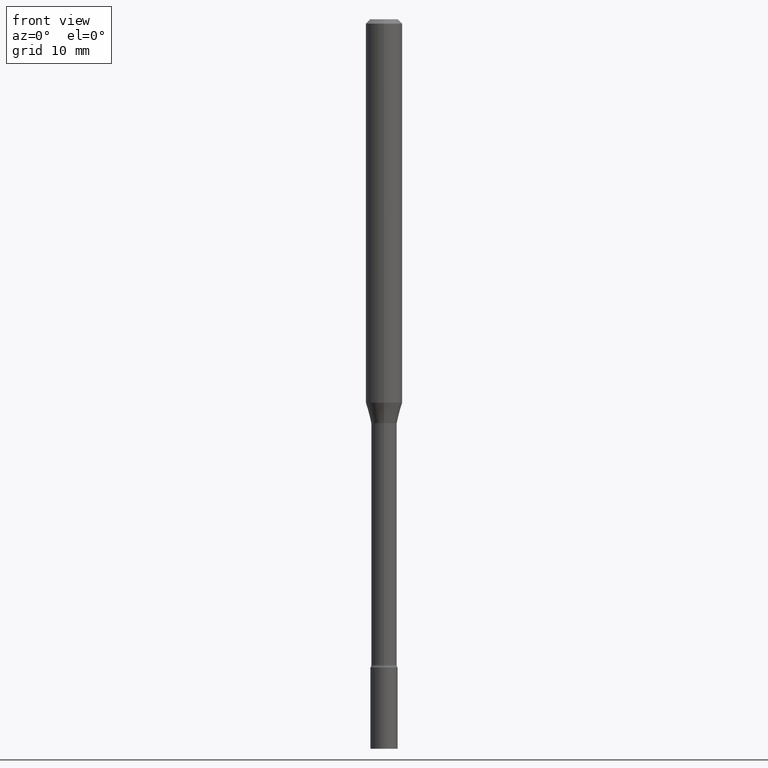
[diagram: clean part render]
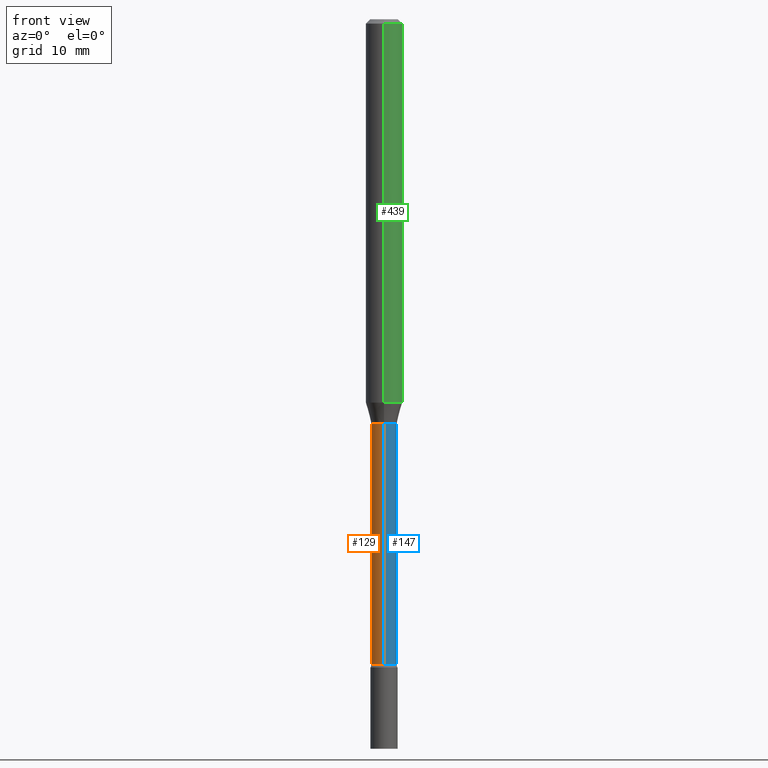
[diagram: same view with three faces highlighted in distinct colors, each labeled with its STEP entity id]
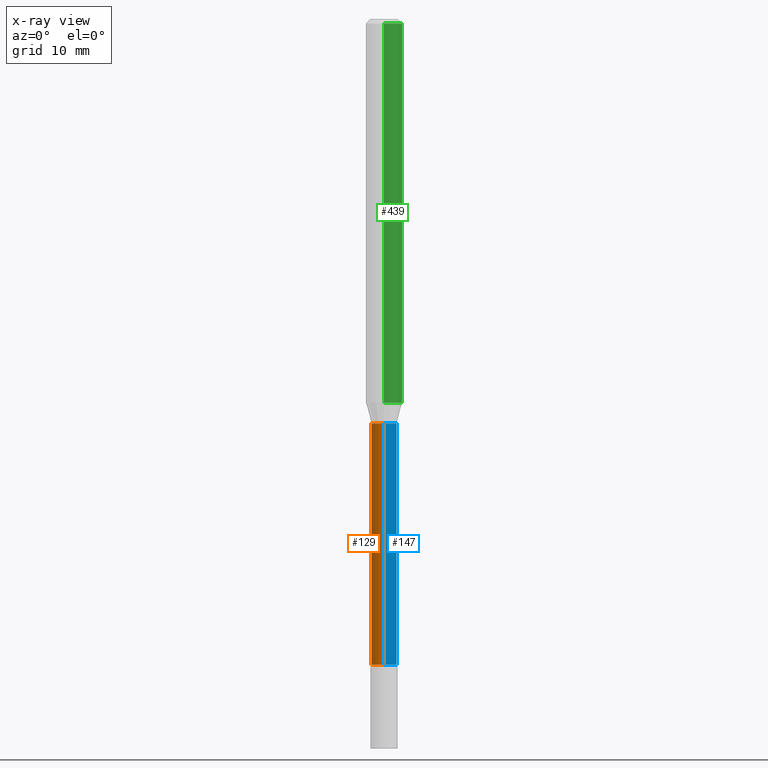
[diagram: x-ray of the same camera — body ghosted, the three highlighted faces saturated]
A machine part, front view with three faces highlighted in distinct colors.
The next image is the same camera in x-ray (body ghosted, the three faces saturated) — at least one of them is partly hidden behind the body in this view.
Their STEP definitions:

[orange] entity #129 — the highlighted cylindrical surface (edge-blend (fillet) strip) has radius 1.11 mm, axis along (-0, 0, 1).
#3 = CARTESIAN_POINT ( 'NONE',  ( 3.389309736411832924E-29, -4.839174378695849730E-15, -1.385974787463811086 ) ) ;
#18 = AXIS2_PLACEMENT_3D ( 'NONE', #3, #161, #484 ) ;
#30 = EDGE_CURVE ( 'NONE', #278, #281, #381, .T. ) ;
#37 = ORIENTED_EDGE ( 'NONE', *, *, #427, .F. ) ;
#84 = CARTESIAN_POINT ( 'NONE',  ( 5.409967474910493395E-29, -7.724220572971457404E-15, -2.212273030308291144 ) ) ;
#86 = ORIENTED_EDGE ( 'NONE', *, *, #186, .F. ) ;
#97 = CARTESIAN_POINT ( 'NONE',  ( -3.051554690148356337E-16, -0.04370000000000771184, -2.212273030308291144 ) ) ;
#113 = CARTESIAN_POINT ( 'NONE',  ( -3.051554690148898679E-16, -0.04370000000000000273, 1.525799186693577041E-16 ) ) ;
#129 = ADVANCED_FACE ( 'NONE', ( #251 ), #216, .T. ) ;
#144 = CIRCLE ( 'NONE', #18, 0.04370000000000001661 ) ;
#161 = DIRECTION ( 'NONE',  ( -2.445433904763820190E-29, 3.491531319664936376E-15, 1.000000000000000000 ) ) ;
#162 = VERTEX_POINT ( 'NONE', #371 ) ;
#186 = EDGE_CURVE ( 'NONE', #278, #162, #249, .T. ) ;
#192 = VERTEX_POINT ( 'NONE', #417 ) ;
#216 = CYLINDRICAL_SURFACE ( 'NONE', #395, 0.04370000000000000273 ) ;
#249 = LINE ( 'NONE', #333, #302 ) ;
#251 = FACE_OUTER_BOUND ( 'NONE', #456, .T. ) ;
#254 = DIRECTION ( 'NONE',  ( -2.445433904763820190E-29, 3.491531319664936376E-15, 1.000000000000000000 ) ) ;
#266 = LINE ( 'NONE', #113, #435 ) ;
#278 = VERTEX_POINT ( 'NONE', #407 ) ;
#281 = VERTEX_POINT ( 'NONE', #97 ) ;
#302 = VECTOR ( 'NONE', #444, 39.37007874015748143 ) ;
#328 = ORIENTED_EDGE ( 'NONE', *, *, #30, .T. ) ;
#333 = CARTESIAN_POINT ( 'NONE',  ( 3.105071755271637513E-16, 0.04370000000000000273, -1.525799186693577041E-16 ) ) ;
#367 = EDGE_CURVE ( 'NONE', #281, #192, #266, .T. ) ;
#371 = CARTESIAN_POINT ( 'NONE',  ( 3.105071755272180348E-16, 0.04369999999999516632, -1.385974787463811309 ) ) ;
#375 = DIRECTION ( 'NONE',  ( -6.982962677686266711E-15, -1.000000000000000000, 6.251368406554380939E-15 ) ) ;
#381 = CIRCLE ( 'NONE', #462, 0.04369999999999998191 ) ;
#386 = CARTESIAN_POINT ( 'NONE',  ( 0.000000000000000000, 0.000000000000000000, 0.000000000000000000 ) ) ;
#395 = AXIS2_PLACEMENT_3D ( 'NONE', #386, #254, #425 ) ;
#398 = ORIENTED_EDGE ( 'NONE', *, *, #367, .T. ) ;
#403 = DIRECTION ( 'NONE',  ( -2.445433904763820190E-29, 3.491531319664936376E-15, 1.000000000000000000 ) ) ;
#407 = CARTESIAN_POINT ( 'NONE',  ( 3.204547738278596731E-16, 0.04369999999999225893, -2.212273030308291588 ) ) ;
#417 = CARTESIAN_POINT ( 'NONE',  ( -3.051554690148559962E-16, -0.04370000000000485996, -1.385974787463810864 ) ) ;
#425 = DIRECTION ( 'NONE',  ( -6.982962677686266711E-15, -1.000000000000000000, 3.491531319664935982E-15 ) ) ;
#427 = EDGE_CURVE ( 'NONE', #162, #192, #144, .T. ) ;
#435 = VECTOR ( 'NONE', #449, 39.37007874015748143 ) ;
#444 = DIRECTION ( 'NONE',  ( -2.445433904763820470E-29, 3.491531319664936376E-15, 1.000000000000000000 ) ) ;
#449 = DIRECTION ( 'NONE',  ( -2.445433904763820470E-29, 3.491531319664936376E-15, 1.000000000000000000 ) ) ;
#456 = EDGE_LOOP ( 'NONE', ( #86, #328, #398, #37 ) ) ;
#462 = AXIS2_PLACEMENT_3D ( 'NONE', #84, #403, #375 ) ;
#484 = DIRECTION ( 'NONE',  ( -6.982962677686265133E-15, -1.000000000000000000, 6.251368406554375417E-15 ) ) ;

[blue] entity #147 — the highlighted cylindrical surface (edge-blend (fillet) strip) has radius 1.11 mm, axis along (-0, 0, 1).
#42 = CARTESIAN_POINT ( 'NONE',  ( 5.409967474910493395E-29, -7.724220572971457404E-15, -2.212273030308291144 ) ) ;
#62 = FACE_OUTER_BOUND ( 'NONE', #294, .T. ) ;
#66 = CIRCLE ( 'NONE', #365, 0.04370000000000001661 ) ;
#73 = AXIS2_PLACEMENT_3D ( 'NONE', #42, #458, #327 ) ;
#97 = CARTESIAN_POINT ( 'NONE',  ( -3.051554690148356337E-16, -0.04370000000000771184, -2.212273030308291144 ) ) ;
#113 = CARTESIAN_POINT ( 'NONE',  ( -3.051554690148898679E-16, -0.04370000000000000273, 1.525799186693577041E-16 ) ) ;
#121 = ORIENTED_EDGE ( 'NONE', *, *, #367, .F. ) ;
#138 = DIRECTION ( 'NONE',  ( -6.982962677686266711E-15, -1.000000000000000000, 3.491531319664935982E-15 ) ) ;
#147 = ADVANCED_FACE ( 'NONE', ( #62 ), #500, .T. ) ;
#162 = VERTEX_POINT ( 'NONE', #371 ) ;
#168 = ORIENTED_EDGE ( 'NONE', *, *, #235, .F. ) ;
#186 = EDGE_CURVE ( 'NONE', #278, #162, #249, .T. ) ;
#192 = VERTEX_POINT ( 'NONE', #417 ) ;
#207 = CARTESIAN_POINT ( 'NONE',  ( 3.389309736411832924E-29, -4.839174378695849730E-15, -1.385974787463811086 ) ) ;
#218 = CARTESIAN_POINT ( 'NONE',  ( 0.000000000000000000, 0.000000000000000000, 0.000000000000000000 ) ) ;
#235 = EDGE_CURVE ( 'NONE', #192, #162, #66, .T. ) ;
#249 = LINE ( 'NONE', #333, #302 ) ;
#266 = LINE ( 'NONE', #113, #435 ) ;
#278 = VERTEX_POINT ( 'NONE', #407 ) ;
#281 = VERTEX_POINT ( 'NONE', #97 ) ;
#288 = AXIS2_PLACEMENT_3D ( 'NONE', #218, #506, #138 ) ;
#291 = EDGE_CURVE ( 'NONE', #281, #278, #358, .T. ) ;
#294 = EDGE_LOOP ( 'NONE', ( #440, #520, #168, #121 ) ) ;
#302 = VECTOR ( 'NONE', #444, 39.37007874015748143 ) ;
#327 = DIRECTION ( 'NONE',  ( -6.982962677686266711E-15, -1.000000000000000000, 6.251368406554380939E-15 ) ) ;
#333 = CARTESIAN_POINT ( 'NONE',  ( 3.105071755271637513E-16, 0.04370000000000000273, -1.525799186693577041E-16 ) ) ;
#358 = CIRCLE ( 'NONE', #73, 0.04369999999999998191 ) ;
#365 = AXIS2_PLACEMENT_3D ( 'NONE', #207, #453, #413 ) ;
#367 = EDGE_CURVE ( 'NONE', #281, #192, #266, .T. ) ;
#371 = CARTESIAN_POINT ( 'NONE',  ( 3.105071755272180348E-16, 0.04369999999999516632, -1.385974787463811309 ) ) ;
#407 = CARTESIAN_POINT ( 'NONE',  ( 3.204547738278596731E-16, 0.04369999999999225893, -2.212273030308291588 ) ) ;
#413 = DIRECTION ( 'NONE',  ( -6.982962677686265133E-15, -1.000000000000000000, 6.251368406554375417E-15 ) ) ;
#417 = CARTESIAN_POINT ( 'NONE',  ( -3.051554690148559962E-16, -0.04370000000000485996, -1.385974787463810864 ) ) ;
#435 = VECTOR ( 'NONE', #449, 39.37007874015748143 ) ;
#440 = ORIENTED_EDGE ( 'NONE', *, *, #291, .T. ) ;
#444 = DIRECTION ( 'NONE',  ( -2.445433904763820470E-29, 3.491531319664936376E-15, 1.000000000000000000 ) ) ;
#449 = DIRECTION ( 'NONE',  ( -2.445433904763820470E-29, 3.491531319664936376E-15, 1.000000000000000000 ) ) ;
#453 = DIRECTION ( 'NONE',  ( -2.445433904763820190E-29, 3.491531319664936376E-15, 1.000000000000000000 ) ) ;
#458 = DIRECTION ( 'NONE',  ( -2.445433904763820190E-29, 3.491531319664936376E-15, 1.000000000000000000 ) ) ;
#500 = CYLINDRICAL_SURFACE ( 'NONE', #288, 0.04370000000000000273 ) ;
#506 = DIRECTION ( 'NONE',  ( -2.445433904763820190E-29, 3.491531319664936376E-15, 1.000000000000000000 ) ) ;
#520 = ORIENTED_EDGE ( 'NONE', *, *, #186, .T. ) ;

[green] entity #439 — the highlighted cylindrical surface (edge-blend (fillet) strip) has radius 1.5875 mm, axis along (-0, 0, 1).
#2 = ORIENTED_EDGE ( 'NONE', *, *, #76, .F. ) ;
#6 = AXIS2_PLACEMENT_3D ( 'NONE', #167, #330, #489 ) ;
#10 = ORIENTED_EDGE ( 'NONE', *, *, #399, .T. ) ;
#11 = CARTESIAN_POINT ( 'NONE',  ( 4.440892098500625669E-16, 0.06250000000000000000, -2.182207074790585235E-16 ) ) ;
#35 = ORIENTED_EDGE ( 'NONE', *, *, #316, .T. ) ;
#56 = VECTOR ( 'NONE', #492, 39.37007874015748143 ) ;
#57 = DIRECTION ( 'NONE',  ( -6.982962677686265922E-15, -1.000000000000000000, 3.483106191921935554E-15 ) ) ;
#76 = EDGE_CURVE ( 'NONE', #198, #473, #420, .T. ) ;
#130 = LINE ( 'NONE', #11, #56 ) ;
#131 = CARTESIAN_POINT ( 'NONE',  ( -4.364351673553912750E-16, -0.06250000000000005551, -0.01499999999999981209 ) ) ;
#145 = VECTOR ( 'NONE', #248, 39.37007874015748143 ) ;
#163 = AXIS2_PLACEMENT_3D ( 'NONE', #299, #307, #428 ) ;
#164 = LINE ( 'NONE', #295, #145 ) ;
#167 = CARTESIAN_POINT ( 'NONE',  ( 3.212902632905481440E-29, -4.587304587529570230E-15, -1.313837444817705258 ) ) ;
#198 = VERTEX_POINT ( 'NONE', #131 ) ;
#228 = AXIS2_PLACEMENT_3D ( 'NONE', #306, #298, #57 ) ;
#248 = DIRECTION ( 'NONE',  ( -2.445433904763820470E-29, 3.491531319664936376E-15, 1.000000000000000000 ) ) ;
#274 = VERTEX_POINT ( 'NONE', #338 ) ;
#295 = CARTESIAN_POINT ( 'NONE',  ( -4.364351673553916201E-16, -0.06250000000000000000, 2.182207074790585235E-16 ) ) ;
#298 = DIRECTION ( 'NONE',  ( -2.445433904763820190E-29, 3.491531319664936376E-15, 1.000000000000000000 ) ) ;
#299 = CARTESIAN_POINT ( 'NONE',  ( 0.000000000000000000, 0.000000000000000000, 0.000000000000000000 ) ) ;
#306 = CARTESIAN_POINT ( 'NONE',  ( 3.668150857145737222E-31, -5.237296979497415338E-17, -0.01500000000000003067 ) ) ;
#307 = DIRECTION ( 'NONE',  ( -2.445433904763820190E-29, 3.491531319664936376E-15, 1.000000000000000000 ) ) ;
#316 = EDGE_CURVE ( 'NONE', #274, #400, #441, .T. ) ;
#330 = DIRECTION ( 'NONE',  ( -2.445433904763820190E-29, 3.491531319664936376E-15, 1.000000000000000000 ) ) ;
#338 = CARTESIAN_POINT ( 'NONE',  ( -4.364351673553592768E-16, -0.06250000000000455191, -1.313837444817705036 ) ) ;
#350 = EDGE_LOOP ( 'NONE', ( #35, #10, #2, #478 ) ) ;
#368 = CARTESIAN_POINT ( 'NONE',  ( 4.440892098500948609E-16, 0.06249999999999544809, -1.313837444817705702 ) ) ;
#388 = CYLINDRICAL_SURFACE ( 'NONE', #163, 0.06250000000000000000 ) ;
#391 = FACE_OUTER_BOUND ( 'NONE', #350, .T. ) ;
#399 = EDGE_CURVE ( 'NONE', #400, #473, #130, .T. ) ;
#400 = VERTEX_POINT ( 'NONE', #368 ) ;
#415 = EDGE_CURVE ( 'NONE', #274, #198, #164, .T. ) ;
#420 = CIRCLE ( 'NONE', #228, 0.06250000000000000000 ) ;
#428 = DIRECTION ( 'NONE',  ( -6.982962677686265922E-15, -1.000000000000000000, 3.491531319664936376E-15 ) ) ;
#439 = ADVANCED_FACE ( 'NONE', ( #391 ), #388, .T. ) ;
#441 = CIRCLE ( 'NONE', #6, 0.06250000000000000000 ) ;
#461 = CARTESIAN_POINT ( 'NONE',  ( 4.440892098500949595E-16, 0.06249999999999995837, -0.01500000000000024751 ) ) ;
#473 = VERTEX_POINT ( 'NONE', #461 ) ;
#478 = ORIENTED_EDGE ( 'NONE', *, *, #415, .F. ) ;
#489 = DIRECTION ( 'NONE',  ( -6.982962677686265922E-15, -1.000000000000000000, 4.370956789862821150E-15 ) ) ;
#492 = DIRECTION ( 'NONE',  ( -2.445433904763820470E-29, 3.491531319664936376E-15, 1.000000000000000000 ) ) ;